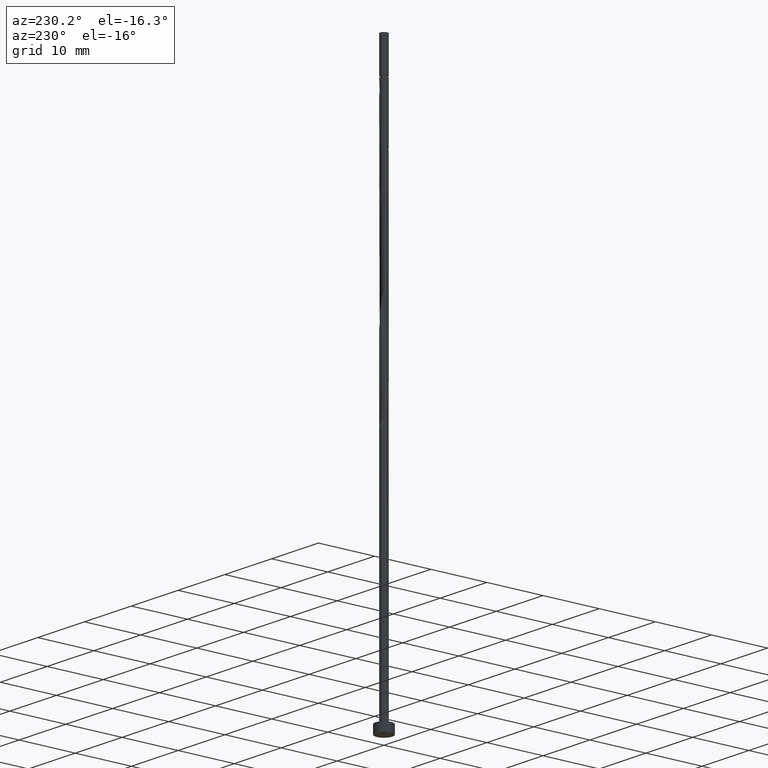
[diagram: clean part render]
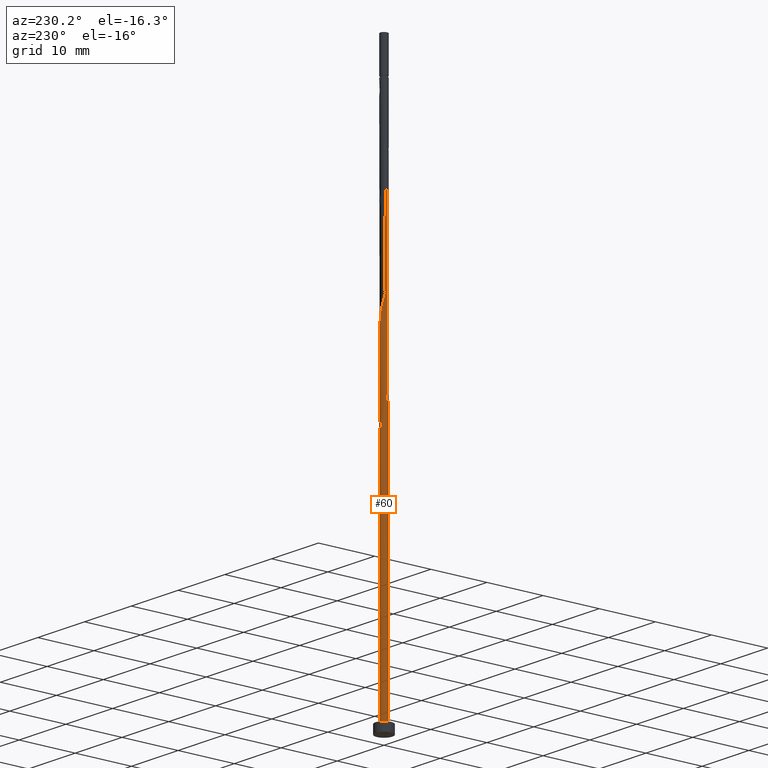
[diagram: same view with one face highlighted and labeled with its STEP entity id]
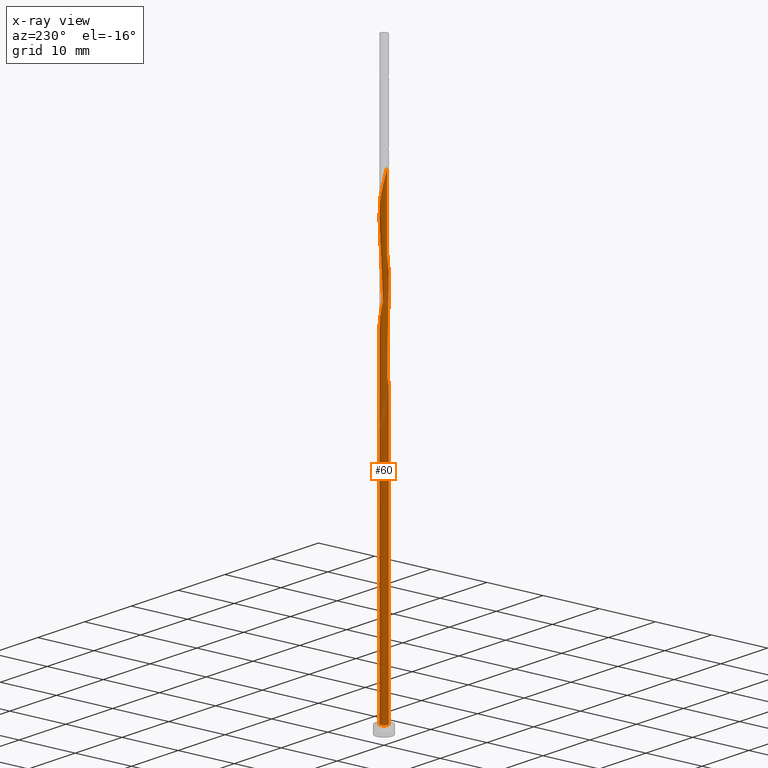
[diagram: x-ray of the same camera — body ghosted, the highlighted face saturated]
A machine part, auxiliary view. The second image highlights one B-rep face of the part: STEP entity #60.
The next image is the same camera in x-ray: the body ghosted, the highlighted face saturated — about 0% of this face is hidden behind the body in this view.
In plain terms, the highlighted cylindrical surface (bore or boss wall) has radius 0.65 mm, axis along (-0, -0, -1).
Its self-contained STEP definition (entity closure, byte-faithful):
#4 = CARTESIAN_POINT ( 'NONE',  ( -0.6163323656226186165, 0.2064810283925089529, 46.42678179730872756 ) ) ;
#19 = CARTESIAN_POINT ( 'NONE',  ( 0.6500000000000000222, 0.000000000000000000, 1.500000000000000000 ) ) ;
#21 = CARTESIAN_POINT ( 'NONE',  ( 0.5085423050022597202, -0.4048267827392227902, 53.83418920471614655 ) ) ;
#22 = ORIENTED_EDGE ( 'NONE', *, *, #588, .F. ) ;
#41 = CARTESIAN_POINT ( 'NONE',  ( -0.4371604206919307845, 0.4944965119427944811, 78.37122624175317753 ) ) ;
#42 = ORIENTED_EDGE ( 'NONE', *, *, #168, .T. ) ;
#50 = AXIS2_PLACEMENT_3D ( 'NONE', #1327, #789, #1225 ) ;
#54 = CARTESIAN_POINT ( 'NONE',  ( 0.4869839987987578667, 0.4305189716074921402, 57.53789290841987025 ) ) ;
#58 = CARTESIAN_POINT ( 'NONE',  ( 0.000000000000000000, 0.000000000000000000, 1.500000000000000000 ) ) ;
#60 = ADVANCED_FACE ( 'NONE', ( #161 ), #1002, .T. ) ;
#71 = VERTEX_POINT ( 'NONE', #297 ) ;
#88 = DIRECTION ( 'NONE',  ( -1.000000000000000000, 0.000000000000000000, 0.000000000000000000 ) ) ;
#91 = CARTESIAN_POINT ( 'NONE',  ( 0.1293483668238607776, 0.6370000000000006768, 43.64900401953096321 ) ) ;
#97 = CARTESIAN_POINT ( 'NONE',  ( -0.6527405419326484104, 0.09780500324936690359, 63.55641142693839640 ) ) ;
#98 = CARTESIAN_POINT ( 'NONE',  ( -0.4371604206919307845, 0.4944965119427944811, 45.03789290841985604 ) ) ;
#111 = CARTESIAN_POINT ( 'NONE',  ( 0.6468267517712203984, 0.1313437738769072105, 72.81567068619762040 ) ) ;
#112 = CARTESIAN_POINT ( 'NONE',  ( -0.3103691097383926567, -0.5711138377943568711, 66.79715216767912978 ) ) ;
#121 = CARTESIAN_POINT ( 'NONE',  ( -0.6497836468519344599, -0.01676938531377019162, 47.35270772323466559 ) ) ;
#122 = CARTESIAN_POINT ( 'NONE',  ( 0.5085423050022597202, -0.4048267827392227902, 70.50085587138279664 ) ) ;
#126 = CARTESIAN_POINT ( 'NONE',  ( 0.2416686535351527942, -0.6141923930183789127, 52.44530031582723950 ) ) ;
#131 = CARTESIAN_POINT ( 'NONE',  ( 0.6163323656226186165, -0.2064810283925091194, 71.42678179730873467 ) ) ;
#138 = CARTESIAN_POINT ( 'NONE',  ( -0.3103691097383926567, -0.5711138377943568711, 50.13048550101243706 ) ) ;
#142 = CARTESIAN_POINT ( 'NONE',  ( 0.2096663310792899471, 0.6258402858197017471, 58.92678179730873467 ) ) ;
#161 = FACE_OUTER_BOUND ( 'NONE', #985, .T. ) ;
#168 = EDGE_CURVE ( 'NONE', #1165, #1091, #299, .T. ) ;
#171 = CARTESIAN_POINT ( 'NONE',  ( -0.1293483668238604722, 0.6370000000000010099, 43.64900401953096321 ) ) ;
#184 = CARTESIAN_POINT ( 'NONE',  ( -0.5628961092000199784, 0.3446505534459725073, 46.88974476027170368 ) ) ;
#210 = EDGE_CURVE ( 'NONE', #995, #71, #633, .T. ) ;
#224 = CARTESIAN_POINT ( 'NONE',  ( 0.2416686535351527942, -0.6141923930183789127, 69.11196698249393933 ) ) ;
#234 = CARTESIAN_POINT ( 'NONE',  ( -0.6468267517712203984, -0.1313437738769072938, 47.81567068619763461 ) ) ;
#235 = ORIENTED_EDGE ( 'NONE', *, *, #1019, .T. ) ;
#243 = ORIENTED_EDGE ( 'NONE', *, *, #210, .T. ) ;
#245 = CARTESIAN_POINT ( 'NONE',  ( -0.5799241893125887115, 0.3151570535356509883, 79.29715216767911556 ) ) ;
#246 = CARTESIAN_POINT ( 'NONE',  ( -0.6048614304856205770, -0.2379971636614398034, 48.27863364916060362 ) ) ;
#248 = CARTESIAN_POINT ( 'NONE',  ( -0.6500000000000000222, 0.000000000000000000, 1.500000000000000000 ) ) ;
#254 = ORIENTED_EDGE ( 'NONE', *, *, #410, .T. ) ;
#259 = CARTESIAN_POINT ( 'NONE',  ( 0.3103691097383927122, 0.5711138377943567601, 75.13048550101245837 ) ) ;
#264 = CARTESIAN_POINT ( 'NONE',  ( -0.2096663310792895307, -0.6258402858197017471, 50.59344846397543449 ) ) ;
#272 = CARTESIAN_POINT ( 'NONE',  ( -0.09631912548336075963, -0.6428239464006625381, 51.05641142693837509 ) ) ;
#278 = CARTESIAN_POINT ( 'NONE',  ( -0.2416686535351529885, 0.6141923930183788016, 60.77863364916059652 ) ) ;
#297 = CARTESIAN_POINT ( 'NONE',  ( 0.1293483668238607776, 0.6370000000000006768, 43.64900401953096321 ) ) ;
#299 = CIRCLE ( 'NONE', #546, 0.6500000000000000222 ) ;
#306 = CARTESIAN_POINT ( 'NONE',  ( -0.6163323656226186165, 0.2064810283925089529, 63.09344846397541318 ) ) ;
#315 = CARTESIAN_POINT ( 'NONE',  ( -0.6048614304856205770, -0.2379971636614398034, 64.94530031582725371 ) ) ;
#320 = CARTESIAN_POINT ( 'NONE',  ( -0.2416686535351529885, 0.6141923930183788016, 44.11196698249394643 ) ) ;
#326 =( BOUNDED_CURVE ( )  B_SPLINE_CURVE ( 2, ( #792, #699, #403, #916, #712, #184, #1234, #1333, #593, #1018, #499, #807, #91 ),
 .UNSPECIFIED., .F., .T. ) 
 B_SPLINE_CURVE_WITH_KNOTS ( ( 3, 2, 2, 2, 2, 2, 3 ),
 ( 0.9295248053855289516, 0.9305555555555555802, 0.9444444444444444198, 0.9583333333333333703, 0.9722222222222222099, 0.9861111111111111605, 1.000000000000000000 ),
 .UNSPECIFIED. ) 
 CURVE ( )  GEOMETRIC_REPRESENTATION_ITEM ( )  RATIONAL_B_SPLINE_CURVE ( ( 0.9071930855141219219, 0.9080659294509696444, 0.9090909090909098378, 0.8952797754656443008, 0.9090909090909098378, 0.8952797754656443008, 0.9090909090909098378, 0.8952797754656443008, 0.9090909090909098378, 0.8952797754656443008, 0.9090909090909098378, 0.8952797754656443008, 0.9090909090909098378 ) ) 
 REPRESENTATION_ITEM ( '' )  );
#328 = ORIENTED_EDGE ( 'NONE', *, *, #801, .F. ) ;
#346 = CARTESIAN_POINT ( 'NONE',  ( 0.6497836468519344599, 0.01676938531377024019, 72.35270772323465849 ) ) ;
#363 = CARTESIAN_POINT ( 'NONE',  ( 0.6048614304856206880, 0.2379971636614396646, 73.27863364916061073 ) ) ;
#370 = VERTEX_POINT ( 'NONE', #893 ) ;
#373 = CARTESIAN_POINT ( 'NONE',  ( -0.01702808011256825085, 0.6598076069816231071, 59.85270772323467270 ) ) ;
#381 = EDGE_CURVE ( 'NONE', #877, #370, #867, .T. ) ;
#395 = DIRECTION ( 'NONE',  ( 1.000000000000000000, 0.000000000000000000, 0.000000000000000000 ) ) ;
#403 = CARTESIAN_POINT ( 'NONE',  ( -0.6497836468519341269, 0.01676938531377027142, 48.27863364916061073 ) ) ;
#410 = EDGE_CURVE ( 'NONE', #1091, #1165, #808, .T. ) ;
#423 = CARTESIAN_POINT ( 'NONE',  ( -0.6500000000000007994, 5.359354248698130256E-16, 47.28481579787554523 ) ) ;
#429 = CARTESIAN_POINT ( 'NONE',  ( -0.2096663310792895307, -0.6258402858197017471, 67.26011513064207747 ) ) ;
#435 = CARTESIAN_POINT ( 'NONE',  ( -0.6500000000000000222, 0.000000000000000000, 100.0000000000000000 ) ) ;
#438 = CARTESIAN_POINT ( 'NONE',  ( 0.5799241893125886005, -0.3151570535356510439, 54.29715216767910846 ) ) ;
#442 = CARTESIAN_POINT ( 'NONE',  ( -0.6500000000000007994, 5.359354248698130256E-16, 47.28481579787554523 ) ) ;
#459 = CARTESIAN_POINT ( 'NONE',  ( -0.5085423050022597202, 0.4048267827392227902, 78.83418920471613944 ) ) ;
#464 = ORIENTED_EDGE ( 'NONE', *, *, #1309, .F. ) ;
#473 = CARTESIAN_POINT ( 'NONE',  ( 0.09631912548336112045, 0.6428239464006625381, 59.38974476027172500 ) ) ;
#487 = CARTESIAN_POINT ( 'NONE',  ( -0.5085423050022597202, 0.4048267827392227902, 62.16752253804948936 ) ) ;
#499 = CARTESIAN_POINT ( 'NONE',  ( -0.09631912548336057922, 0.6428239464006623161, 44.57492994545690124 ) ) ;
#507 = CARTESIAN_POINT ( 'NONE',  ( -0.5628961092000202004, -0.3446505534459723963, 65.40826327879021562 ) ) ;
#536 = CARTESIAN_POINT ( 'NONE',  ( 0.5799241893125886005, -0.3151570535356510439, 70.96381883434577276 ) ) ;
#539 = CARTESIAN_POINT ( 'NONE',  ( -0.6500000000000000222, 0.000000000000000000, 100.0000000000000000 ) ) ;
#546 = AXIS2_PLACEMENT_3D ( 'NONE', #58, #1331, #395 ) ;
#551 = CARTESIAN_POINT ( 'NONE',  ( -0.01702808011256825085, 0.6598076069816231071, 76.51937438990132989 ) ) ;
#552 = CARTESIAN_POINT ( 'NONE',  ( -0.5628961092000202004, -0.3446505534459723963, 48.74159661212356554 ) ) ;
#566 = CARTESIAN_POINT ( 'NONE',  ( 0.1293483668238605555, -0.6370000000000008988, 51.98233735286429180 ) ) ;
#578 = CARTESIAN_POINT ( 'NONE',  ( 0.2096663310792899471, 0.6258402858197017471, 75.59344846397539186 ) ) ;
#588 = EDGE_CURVE ( 'NONE', #1310, #71, #326, .T. ) ;
#593 = CARTESIAN_POINT ( 'NONE',  ( -0.3103691097383923791, 0.5711138377943565381, 45.50085587138282506 ) ) ;
#618 = CARTESIAN_POINT ( 'NONE',  ( -0.5799241893125887115, 0.3151570535356509883, 45.96381883434578697 ) ) ;
#632 = CARTESIAN_POINT ( 'NONE',  ( -0.3394145371135419698, 0.5543444524805865026, 44.57492994545689413 ) ) ;
#633 = CIRCLE ( 'NONE', #50, 0.6500000000000000222 ) ;
#637 = CARTESIAN_POINT ( 'NONE',  ( -0.6500000000000010214, -0.008386088315812679703, 47.31883317180789561 ) ) ;
#645 = DIRECTION ( 'NONE',  ( -0.000000000000000000, -0.000000000000000000, -1.000000000000000000 ) ) ;
#650 = CARTESIAN_POINT ( 'NONE',  ( -0.6163323656226186165, 0.2064810283925089529, 79.76011513064207747 ) ) ;
#651 = CARTESIAN_POINT ( 'NONE',  ( -0.4869839987987581442, -0.4305189716074920292, 49.20455957508652034 ) ) ;
#656 = CARTESIAN_POINT ( 'NONE',  ( 0.4110718883974955329, 0.5163873897690118842, 58.00085587138281795 ) ) ;
#668 = CARTESIAN_POINT ( 'NONE',  ( 0.09631912548336112045, 0.6428239464006625381, 76.05641142693836798 ) ) ;
#685 = CARTESIAN_POINT ( 'NONE',  ( -0.4371604206919307845, 0.4944965119427944811, 61.70455957508652745 ) ) ;
#699 = CARTESIAN_POINT ( 'NONE',  ( -0.6500000000000005773, 0.008386088315812540925, 48.31250820058737361 ) ) ;
#712 = CARTESIAN_POINT ( 'NONE',  ( -0.6048614304856200219, 0.2379971636614398589, 47.35270772323465849 ) ) ;
#733 = VECTOR ( 'NONE', #1297, 1000.000000000000000 ) ;
#734 = CARTESIAN_POINT ( 'NONE',  ( -0.09631912548336075963, -0.6428239464006625381, 67.72307809360503938 ) ) ;
#746 = CARTESIAN_POINT ( 'NONE',  ( 0.3394145371135419142, -0.5543444524805865026, 69.57492994545688703 ) ) ;
#762 = CARTESIAN_POINT ( 'NONE',  ( -0.3394145371135419698, 0.5543444524805865026, 77.90826327879018720 ) ) ;
#785 = CARTESIAN_POINT ( 'NONE',  ( -0.1293483668238604722, 0.6370000000000008988, 60.31567068619763461 ) ) ;
#789 = DIRECTION ( 'NONE',  ( 0.000000000000000000, -0.000000000000000000, -1.000000000000000000 ) ) ;
#792 = CARTESIAN_POINT ( 'NONE',  ( -0.6500000000000005773, -4.416331985425468930E-16, 48.34652557451973109 ) ) ;
#801 = EDGE_CURVE ( 'NONE', #995, #877, #887, .T. ) ;
#807 = CARTESIAN_POINT ( 'NONE',  ( 0.01702808011256830983, 0.6598076069816229960, 44.11196698249393933 ) ) ;
#808 = CIRCLE ( 'NONE', #1241, 0.6500000000000000222 ) ;
#826 = CARTESIAN_POINT ( 'NONE',  ( -0.6500000000000005773, 0.1059853416832978595, 46.85489628550992336 ) ) ;
#834 = CARTESIAN_POINT ( 'NONE',  ( -0.6468267517712203984, -0.1313437738769072938, 64.48233735286429180 ) ) ;
#849 = ORIENTED_EDGE ( 'NONE', *, *, #381, .F. ) ;
#853 = CARTESIAN_POINT ( 'NONE',  ( 0.4371604206919307845, -0.4944965119427946476, 70.03789290841986315 ) ) ;
#862 = CARTESIAN_POINT ( 'NONE',  ( 0.6497836468519344599, 0.01676938531377024019, 55.68604105656801551 ) ) ;
#867 =( BOUNDED_CURVE ( )  B_SPLINE_CURVE ( 2, ( #442, #637, #121, #234, #246, #552, #651, #1081, #138, #264, #272, #881, #566, #126, #1094, #998, #21, #438, #1200, #1292, #862, #1320, #1209, #1076, #54, #656, #1086, #142, #473, #373, #785, #278, #1334, #685, #487, #1167, #306, #97, #1261, #834, #315, #507, #940, #1146, #112, #429, #734, #1177, #869, #224, #746, #853, #122, #536, #131, #1295, #346, #111, #363, #1219, #1108, #1303, #259, #578, #668, #551, #984, #1195, #762, #41, #459, #245, #650, #1014, #1141 ),
 .UNSPECIFIED., .F., .T. ) 
 B_SPLINE_CURVE_WITH_KNOTS ( ( 3, 2, 2, 2, 2, 2, 2, 2, 2, 2, 2, 2, 2, 2, 2, 2, 2, 2, 2, 2, 2, 2, 2, 2, 2, 2, 2, 2, 2, 2, 2, 2, 2, 2, 2, 2, 2, 3 ),
 ( 0.05452480538552897937, 0.05555555555555558023, 0.06944444444444441977, 0.08333333333333337034, 0.09722222222222220989, 0.1111111111111111605, 0.1250000000000000000, 0.1388888888888888395, 0.1527777777777777901, 0.1666666666666666297, 0.1805555555555555802, 0.1944444444444444198, 0.2083333333333333703, 0.2222222222222222099, 0.2361111111111111605, 0.2500000000000000000, 0.2638888888888888395, 0.2777777777777777901, 0.2916666666666666297, 0.3055555555555555802, 0.3194444444444444198, 0.3333333333333333703, 0.3472222222222222099, 0.3611111111111111605, 0.3750000000000000000, 0.3888888888888888395, 0.4027777777777777901, 0.4166666666666666297, 0.4305555555555555802, 0.4444444444444444198, 0.4583333333333333703, 0.4722222222222222099, 0.4861111111111111605, 0.5000000000000000000, 0.5138888888888888395, 0.5277777777777777901, 0.5416666666666667407, 0.5545248053855288406 ),
 .UNSPECIFIED. ) 
 CURVE ( )  GEOMETRIC_REPRESENTATION_ITEM ( )  RATIONAL_B_SPLINE_CURVE ( ( 0.9071930855141232541, 0.9080659294509709767, 0.9090909090909111701, 0.8952797754656457441, 0.9090909090909111701, 0.8952797754656457441, 0.9090909090909111701, 0.8952797754656457441, 0.9090909090909111701, 0.8952797754656457441, 0.9090909090909111701, 0.8952797754656457441, 0.9090909090909111701, 0.8952797754656457441, 0.9090909090909111701, 0.8952797754656457441, 0.9090909090909111701, 0.8952797754656457441, 0.9090909090909111701, 0.8952797754656457441, 0.9090909090909111701, 0.8952797754656457441, 0.9090909090909111701, 0.8952797754656457441, 0.9090909090909111701, 0.8952797754656457441, 0.9090909090909111701, 0.8952797754656457441, 0.9090909090909111701, 0.8952797754656457441, 0.9090909090909111701, 0.8952797754656457441, 0.9090909090909111701, 0.8952797754656457441, 0.9090909090909111701, 0.8952797754656457441, 0.9090909090909111701, 0.8952797754656457441, 0.9090909090909111701, 0.8952797754656457441, 0.9090909090909111701, 0.8952797754656457441, 0.9090909090909111701, 0.8952797754656457441, 0.9090909090909111701, 0.8952797754656457441, 0.9090909090909111701, 0.8952797754656457441, 0.9090909090909111701, 0.8952797754656457441, 0.9090909090909111701, 0.8952797754656457441, 0.9090909090909111701, 0.8952797754656457441, 0.9090909090909111701, 0.8952797754656457441, 0.9090909090909111701, 0.8952797754656457441, 0.9090909090909111701, 0.8952797754656457441, 0.9090909090909111701, 0.8952797754656457441, 0.9090909090909111701, 0.8952797754656457441, 0.9090909090909111701, 0.8952797754656457441, 0.9090909090909111701, 0.8952797754656457441, 0.9090909090909111701, 0.8952797754656457441, 0.9090909090909111701, 0.8952797754656457441, 0.9090909090909111701, 0.8963047551055860485, 0.9071930855141230321 ) ) 
 REPRESENTATION_ITEM ( '' )  );
#869 = CARTESIAN_POINT ( 'NONE',  ( 0.1293483668238605555, -0.6370000000000008988, 68.64900401953096321 ) ) ;
#877 = VERTEX_POINT ( 'NONE', #423 ) ;
#881 = CARTESIAN_POINT ( 'NONE',  ( 0.01702808011256804963, -0.6598076069816232181, 51.51937438990133700 ) ) ;
#887 =( BOUNDED_CURVE ( )  B_SPLINE_CURVE ( 2, ( #171, #320, #632, #98, #935, #618, #4, #826, #951 ),
 .UNSPECIFIED., .F., .T. ) 
 B_SPLINE_CURVE_WITH_KNOTS ( ( 3, 2, 2, 2, 3 ),
 ( 0.000000000000000000, 0.01388888888888883955, 0.02777777777777779011, 0.04166666666666662966, 0.05452480538552897937 ),
 .UNSPECIFIED. ) 
 CURVE ( )  GEOMETRIC_REPRESENTATION_ITEM ( )  RATIONAL_B_SPLINE_CURVE ( ( 0.9090909090909111701, 0.8952797754656457441, 0.9090909090909111701, 0.8952797754656457441, 0.9090909090909111701, 0.8952797754656457441, 0.9090909090909111701, 0.8963047551055859374, 0.9071930855141232541 ) ) 
 REPRESENTATION_ITEM ( '' )  );
#893 = CARTESIAN_POINT ( 'NONE',  ( -0.6500000000000009104, -2.987793309378748743E-16, 80.61814913120889514 ) ) ;
#916 = CARTESIAN_POINT ( 'NONE',  ( -0.6468267517712203984, 0.1313437738769073493, 47.81567068619763461 ) ) ;
#935 = CARTESIAN_POINT ( 'NONE',  ( -0.5085423050022597202, 0.4048267827392227902, 45.50085587138281795 ) ) ;
#940 = CARTESIAN_POINT ( 'NONE',  ( -0.4869839987987581442, -0.4305189716074920292, 65.87122624175319174 ) ) ;
#951 = CARTESIAN_POINT ( 'NONE',  ( -0.6500000000000007994, 5.359354248698130256E-16, 47.28481579787554523 ) ) ;
#963 = CARTESIAN_POINT ( 'NONE',  ( -0.6500000000000005773, -4.416331985425468930E-16, 48.34652557451973109 ) ) ;
#984 = CARTESIAN_POINT ( 'NONE',  ( -0.1293483668238604722, 0.6370000000000008988, 76.98233735286432022 ) ) ;
#985 = EDGE_LOOP ( 'NONE', ( #464, #849, #235, #42, #254, #1205, #328, #243, #22 ) ) ;
#995 = VERTEX_POINT ( 'NONE', #1214 ) ;
#998 = CARTESIAN_POINT ( 'NONE',  ( 0.4371604206919307845, -0.4944965119427946476, 53.37122624175317043 ) ) ;
#1002 = CYLINDRICAL_SURFACE ( 'NONE', #1204, 0.6500000000000000222 ) ;
#1014 = CARTESIAN_POINT ( 'NONE',  ( -0.6500000000000001332, 0.1059853416832990114, 80.18822961884323774 ) ) ;
#1018 = CARTESIAN_POINT ( 'NONE',  ( -0.2096663310792894475, 0.6258402858197018581, 45.03789290841986315 ) ) ;
#1019 = EDGE_CURVE ( 'NONE', #877, #1165, #1073, .T. ) ;
#1022 = CARTESIAN_POINT ( 'NONE',  ( 0.000000000000000000, 0.000000000000000000, 100.0000000000000000 ) ) ;
#1066 = LINE ( 'NONE', #539, #733 ) ;
#1070 = VECTOR ( 'NONE', #645, 1000.000000000000000 ) ;
#1073 = LINE ( 'NONE', #435, #1070 ) ;
#1076 = CARTESIAN_POINT ( 'NONE',  ( 0.5628961092000205335, 0.3446505534459720632, 57.07492994545688703 ) ) ;
#1081 = CARTESIAN_POINT ( 'NONE',  ( -0.4110718883974955329, -0.5163873897690118842, 49.66752253804948936 ) ) ;
#1086 = CARTESIAN_POINT ( 'NONE',  ( 0.3103691097383927122, 0.5711138377943567601, 58.46381883434577986 ) ) ;
#1091 = VERTEX_POINT ( 'NONE', #19 ) ;
#1094 = CARTESIAN_POINT ( 'NONE',  ( 0.3394145371135419142, -0.5543444524805865026, 52.90826327879022983 ) ) ;
#1108 = CARTESIAN_POINT ( 'NONE',  ( 0.4869839987987578667, 0.4305189716074921402, 74.20455957508653455 ) ) ;
#1141 = CARTESIAN_POINT ( 'NONE',  ( -0.6500000000000009104, -2.987793309378749236E-16, 80.61814913120889514 ) ) ;
#1146 = CARTESIAN_POINT ( 'NONE',  ( -0.4110718883974955329, -0.5163873897690118842, 66.33418920471616786 ) ) ;
#1151 = DIRECTION ( 'NONE',  ( 1.000000000000000000, 0.000000000000000000, 0.000000000000000000 ) ) ;
#1165 = VERTEX_POINT ( 'NONE', #248 ) ;
#1167 = CARTESIAN_POINT ( 'NONE',  ( -0.5799241893125887115, 0.3151570535356509883, 62.63048550101245127 ) ) ;
#1177 = CARTESIAN_POINT ( 'NONE',  ( 0.01702808011256804963, -0.6598076069816232181, 68.18604105656800130 ) ) ;
#1195 = CARTESIAN_POINT ( 'NONE',  ( -0.2416686535351529885, 0.6141923930183788016, 77.44530031582723950 ) ) ;
#1200 = CARTESIAN_POINT ( 'NONE',  ( 0.6163323656226186165, -0.2064810283925091194, 54.76011513064208458 ) ) ;
#1204 = AXIS2_PLACEMENT_3D ( 'NONE', #1022, #1344, #88 ) ;
#1205 = ORIENTED_EDGE ( 'NONE', *, *, #1019, .F. ) ;
#1209 = CARTESIAN_POINT ( 'NONE',  ( 0.6048614304856206880, 0.2379971636614396646, 56.61196698249392512 ) ) ;
#1214 = CARTESIAN_POINT ( 'NONE',  ( -0.1293483668238604722, 0.6370000000000010099, 43.64900401953096321 ) ) ;
#1219 = CARTESIAN_POINT ( 'NONE',  ( 0.5628961092000205335, 0.3446505534459720632, 73.74159661212358685 ) ) ;
#1225 = DIRECTION ( 'NONE',  ( -1.000000000000000000, 0.000000000000000000, 0.000000000000000000 ) ) ;
#1234 = CARTESIAN_POINT ( 'NONE',  ( -0.4869839987987576446, 0.4305189716074920292, 46.42678179730874888 ) ) ;
#1241 = AXIS2_PLACEMENT_3D ( 'NONE', #1350, #1266, #1151 ) ;
#1261 = CARTESIAN_POINT ( 'NONE',  ( -0.6497836468519344599, -0.01676938531377019162, 64.01937438990134410 ) ) ;
#1266 = DIRECTION ( 'NONE',  ( 0.000000000000000000, 0.000000000000000000, 1.000000000000000000 ) ) ;
#1292 = CARTESIAN_POINT ( 'NONE',  ( 0.6527405419326484104, -0.09780500324936726442, 55.22307809360502517 ) ) ;
#1295 = CARTESIAN_POINT ( 'NONE',  ( 0.6527405419326484104, -0.09780500324936726442, 71.88974476027171079 ) ) ;
#1297 = DIRECTION ( 'NONE',  ( -0.000000000000000000, -0.000000000000000000, -1.000000000000000000 ) ) ;
#1303 = CARTESIAN_POINT ( 'NONE',  ( 0.4110718883974955329, 0.5163873897690118842, 74.66752253804946804 ) ) ;
#1309 = EDGE_CURVE ( 'NONE', #370, #1310, #1066, .T. ) ;
#1310 = VERTEX_POINT ( 'NONE', #963 ) ;
#1320 = CARTESIAN_POINT ( 'NONE',  ( 0.6468267517712203984, 0.1313437738769072105, 56.14900401953097031 ) ) ;
#1327 = CARTESIAN_POINT ( 'NONE',  ( 0.000000000000000000, 0.000000000000000000, 43.64900401953096321 ) ) ;
#1331 = DIRECTION ( 'NONE',  ( 0.000000000000000000, 0.000000000000000000, 1.000000000000000000 ) ) ;
#1333 = CARTESIAN_POINT ( 'NONE',  ( -0.4110718883974955329, 0.5163873897690118842, 45.96381883434578697 ) ) ;
#1334 = CARTESIAN_POINT ( 'NONE',  ( -0.3394145371135419698, 0.5543444524805865026, 61.24159661212356554 ) ) ;
#1344 = DIRECTION ( 'NONE',  ( -0.000000000000000000, -0.000000000000000000, -1.000000000000000000 ) ) ;
#1350 = CARTESIAN_POINT ( 'NONE',  ( 0.000000000000000000, 0.000000000000000000, 1.500000000000000000 ) ) ;